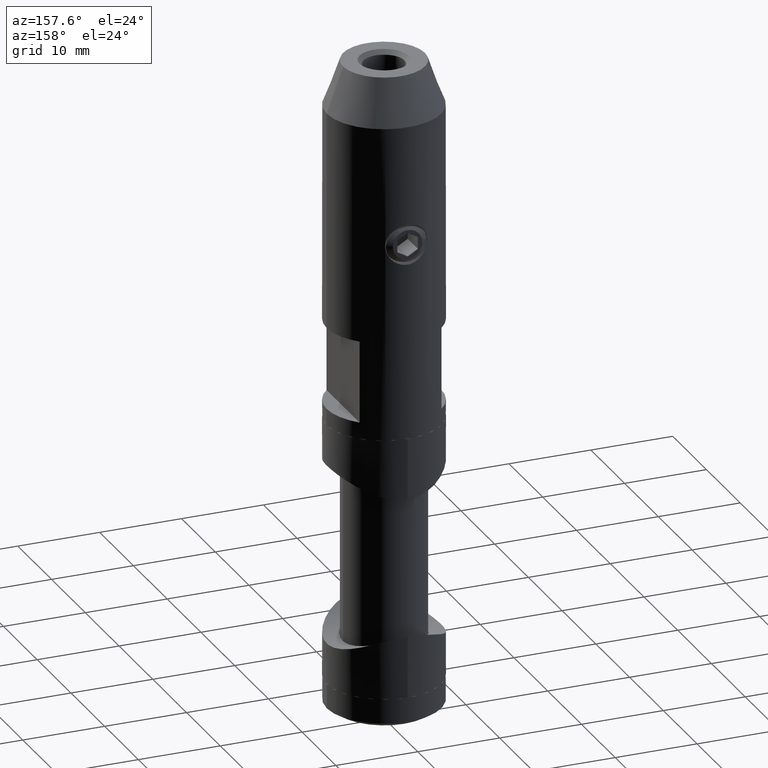
[diagram: clean part render]
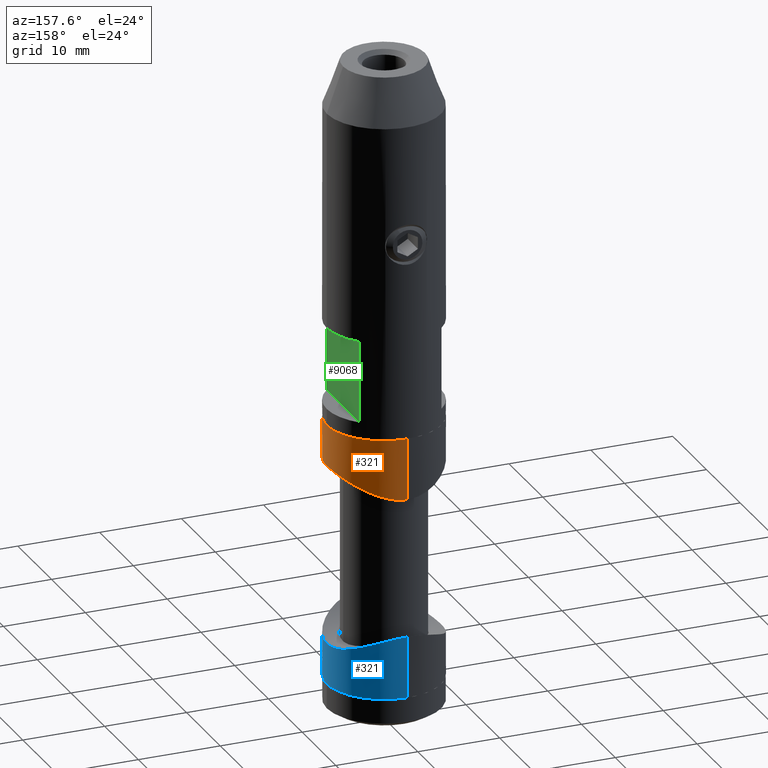
[diagram: same view with three faces highlighted in distinct colors, each labeled with its STEP entity id]
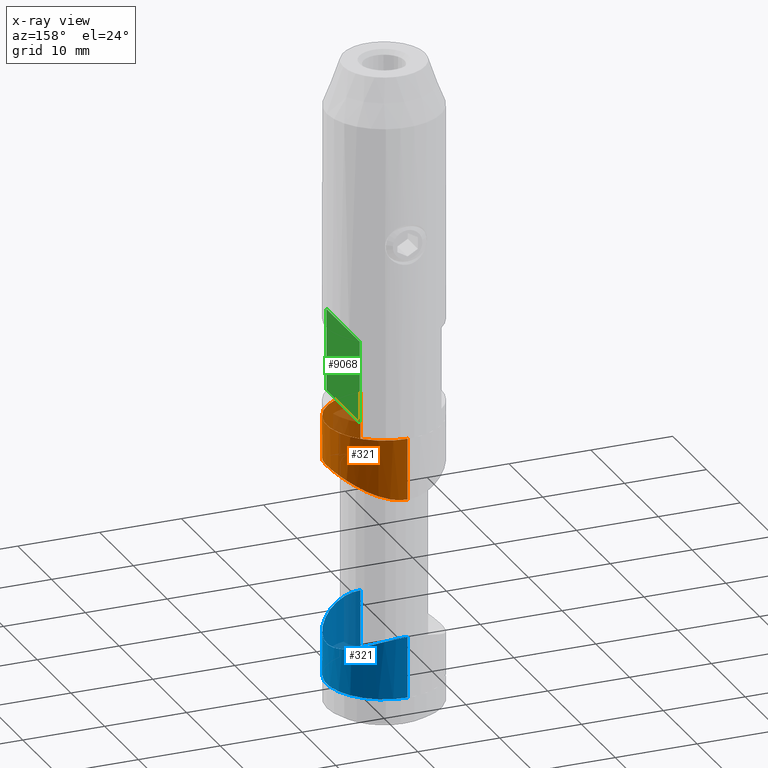
[diagram: x-ray of the same camera — body ghosted, the three highlighted faces saturated]
A machine part, auxiliary view with three faces highlighted in distinct colors.
The next image is the same camera in x-ray (body ghosted, the three faces saturated) — at least one of them is partly hidden behind the body in this view.
Their STEP definitions:

[orange] entity #321 — the highlighted cylindrical surface (partial cylindrical patch) has radius 7 mm, axis along (0, -0, 1).
#68 = CARTESIAN_POINT ( 'NONE',  ( -7.000000000000254907, -8.282557552136786819E-30, 15.00000000000000000 ) ) ;
#122 = LINE ( 'NONE', #13471, #11894 ) ;
#321 = ADVANCED_FACE ( 'NONE', ( #9655 ), #5587, .T. ) ;
#506 = CARTESIAN_POINT ( 'NONE',  ( 7.000000000000004441, -5.723021685032325300E-14, 7.514718625761387827 ) ) ;
#767 = CARTESIAN_POINT ( 'NONE',  ( -2.300155943045375739, -6.627297524066506185, 5.234279387161443253 ) ) ;
#959 = CARTESIAN_POINT ( 'NONE',  ( -0.4616743109381308829, -6.988715196624761816, 5.007192627578020527 ) ) ;
#1020 = CARTESIAN_POINT ( 'NONE',  ( 6.999999999999996447, -0.4740943276049978117, 7.514718625761454440 ) ) ;
#1075 = CARTESIAN_POINT ( 'NONE',  ( -7.000000000000000000, -8.282903418160179087E-30, 2.159148023590378122E-34 ) ) ;
#2294 = CARTESIAN_POINT ( 'NONE',  ( 3.563861619915402290, -6.041396753817215526, 5.585804001147470998 ) ) ;
#2364 = CARTESIAN_POINT ( 'NONE',  ( -1.164191950391297414, -6.906543958800002159, 5.059295683047658088 ) ) ;
#2401 = DIRECTION ( 'NONE',  ( -3.084497176557682421E-35, -3.084497176557682421E-35, -1.000000000000000000 ) ) ;
#2502 = CARTESIAN_POINT ( 'NONE',  ( -0.9295944337245134470, -6.941983683191890186, 5.036843005532409379 ) ) ;
#2564 = CARTESIAN_POINT ( 'NONE',  ( 6.056531478097463506, -3.537940262749728948, 6.812822254243739550 ) ) ;
#2999 = DIRECTION ( 'NONE',  ( -3.084497176557682421E-35, -3.084497176557682421E-35, -1.000000000000000000 ) ) ;
#3431 = VERTEX_POINT ( 'NONE', #506 ) ;
#3862 = CARTESIAN_POINT ( 'NONE',  ( -4.634687890405571942, -5.250686637709595317, 6.022263489474741327 ) ) ;
#3930 = CARTESIAN_POINT ( 'NONE',  ( -3.144431679818662229, -6.258171158556381286, 5.456902873018733224 ) ) ;
#4005 = CARTESIAN_POINT ( 'NONE',  ( -3.738745410604529695, -5.922185817696358434, 5.652949233903943771 ) ) ;
#4127 = CARTESIAN_POINT ( 'NONE',  ( 6.753785770811216338, -1.854607853229240932, 7.317040327690201629 ) ) ;
#4145 = DIRECTION ( 'NONE',  ( 3.084497176557682421E-35, 3.084497176557682421E-35, 1.000000000000000000 ) ) ;
#4487 = EDGE_CURVE ( 'NONE', #19534, #18826, #4799, .T. ) ;
#4535 = LINE ( 'NONE', #68, #19913 ) ;
#4799 = CIRCLE ( 'NONE', #8025, 7.000000000000254907 ) ;
#5586 = CARTESIAN_POINT ( 'NONE',  ( -1.857958556001904737, -6.765409035154463346, 5.148022972862459135 ) ) ;
#5587 = CYLINDRICAL_SURFACE ( 'NONE', #13263, 7.000000000000254907 ) ;
#5978 = CARTESIAN_POINT ( 'NONE',  ( -5.554878004119144563, -4.282654945670762103, 6.501104165803741175 ) ) ;
#6626 = ORIENTED_EDGE ( 'NONE', *, *, #11812, .F. ) ;
#6986 = CARTESIAN_POINT ( 'NONE',  ( 0.9561356181228538587, -6.950147116260164459, 5.031903391544506832 ) ) ;
#7056 = CARTESIAN_POINT ( 'NONE',  ( 5.277947180286361117, -4.619883079932325387, 6.342453332013024081 ) ) ;
#7247 = CARTESIAN_POINT ( 'NONE',  ( -6.270293628163780220, -3.144809313829456610, 6.959473810284622530 ) ) ;
#7383 = CARTESIAN_POINT ( 'NONE',  ( -7.000000000000284217, -0.4763624378593324660, 7.514718625761431348 ) ) ;
#7428 = B_SPLINE_CURVE_WITH_KNOTS ( 'NONE', 3,
 ( #17685, #1020, #11624, #11748, #4127, #17756, #16398, #16136, #2564, #16271, #7056, #13321, #9949, #2294, #19372, #14577, #19158, #6986, #11554, #13132, #959, #2502, #2364, #5586, #767, #8484, #3930, #11483, #4005, #14643, #8550, #3862, #13256, #10085, #5978, #16473, #7247, #12092, #13510, #8936, #7383, #16670 ),
 .UNSPECIFIED., .F., .F.,
 ( 4, 2, 2, 2, 2, 2, 2, 2, 2, 2, 2, 2, 2, 2, 2, 2, 2, 2, 2, 2, 4 ),
 ( 0.02253123587157023974, 0.02393527655227489434, 0.02463729689262722511, 0.02533931723297955241, 0.02674335791368420701, 0.02814739859438886507, 0.02955143927509352314, 0.03095547995579818121, 0.03235952063650283927, 0.03376356131720749387, 0.03446558165755982117, 0.03516760199791215541, 0.03657164267861681001, 0.03727366301896913731, 0.03797568335932146460, 0.03867770369967379190, 0.03937972404002612614, 0.04078376472073078074, 0.04218780540143544922, 0.04359184608214010381, 0.04499588676284476535 ),
 .UNSPECIFIED. ) ;
#8025 = AXIS2_PLACEMENT_3D ( 'NONE', #11770, #4145, #10434 ) ;
#8484 = CARTESIAN_POINT ( 'NONE',  ( -2.936049864269827836, -6.358660130344079953, 5.396817665741710179 ) ) ;
#8550 = CARTESIAN_POINT ( 'NONE',  ( -4.289978481396708787, -5.535894384654330480, 5.869272368477476576 ) ) ;
#8609 = EDGE_CURVE ( 'NONE', #17707, #19534, #4535, .T. ) ;
#8836 = ORIENTED_EDGE ( 'NONE', *, *, #11252, .T. ) ;
#8936 = CARTESIAN_POINT ( 'NONE',  ( -6.951047740780801121, -0.9505557249542421205, 7.473712008211712998 ) ) ;
#9655 = FACE_OUTER_BOUND ( 'NONE', #11218, .T. ) ;
#9949 = CARTESIAN_POINT ( 'NONE',  ( 4.302957743383328371, -5.539326587374739042, 5.868803495781969026 ) ) ;
#10085 = CARTESIAN_POINT ( 'NONE',  ( -5.273991696881241253, -4.624345898174418323, 6.340300785909568582 ) ) ;
#10434 = DIRECTION ( 'NONE',  ( 1.000000000000000000, 1.183291357831474618E-30, 2.445028249710268746E-35 ) ) ;
#10675 = DIRECTION ( 'NONE',  ( -3.084497176557682421E-35, -3.084497176557682421E-35, -1.000000000000000000 ) ) ;
#11218 = EDGE_LOOP ( 'NONE', ( #6626, #8836, #14083, #13206 ) ) ;
#11252 = EDGE_CURVE ( 'NONE', #3431, #17707, #7428, .T. ) ;
#11483 = CARTESIAN_POINT ( 'NONE',  ( -3.545662890074149143, -6.039903269820232623, 5.584980927143774032 ) ) ;
#11554 = CARTESIAN_POINT ( 'NONE',  ( 0.4779855654310720681, -6.999466188930153265, 5.000339697825916474 ) ) ;
#11624 = CARTESIAN_POINT ( 'NONE',  ( 6.952353740326868703, -0.9398979421706252779, 7.474799345840276388 ) ) ;
#11748 = CARTESIAN_POINT ( 'NONE',  ( 6.812274545733001396, -1.627136497544569682, 7.363074465144524794 ) ) ;
#11770 = CARTESIAN_POINT ( 'NONE',  ( 0.000000000000000000, 0.000000000000000000, 0.000000000000000000 ) ) ;
#11812 = EDGE_CURVE ( 'NONE', #3431, #18826, #122, .T. ) ;
#11894 = VECTOR ( 'NONE', #2999, 1000.000000000000000 ) ;
#12092 = CARTESIAN_POINT ( 'NONE',  ( -6.624192190383780598, -2.307918029003276583, 7.215481015150577271 ) ) ;
#12592 = CARTESIAN_POINT ( 'NONE',  ( 7.000000000000000000, 8.572527594031556020E-16, -2.159148023590378122E-34 ) ) ;
#13132 = CARTESIAN_POINT ( 'NONE',  ( -0.2271689663048469532, -7.000260248264503993, 4.999834387531060464 ) ) ;
#13206 = ORIENTED_EDGE ( 'NONE', *, *, #4487, .T. ) ;
#13256 = CARTESIAN_POINT ( 'NONE',  ( -4.801024735240244645, -5.099024646223536017, 6.101446781323081936 ) ) ;
#13263 = AXIS2_PLACEMENT_3D ( 'NONE', #14871, #2401, #16639 ) ;
#13321 = CARTESIAN_POINT ( 'NONE',  ( 4.647052587015751079, -5.254041145979729599, 6.023535880095139738 ) ) ;
#13471 = CARTESIAN_POINT ( 'NONE',  ( 7.000000000000254907, 8.572527594031867620E-16, 15.00000000000000000 ) ) ;
#13510 = CARTESIAN_POINT ( 'NONE',  ( -6.761740977554861587, -1.870689667826440639, 7.322816668642889049 ) ) ;
#14083 = ORIENTED_EDGE ( 'NONE', *, *, #8609, .T. ) ;
#14577 = CARTESIAN_POINT ( 'NONE',  ( 2.313820538208837707, -6.622735270713296707, 5.237110732547023417 ) ) ;
#14643 = CARTESIAN_POINT ( 'NONE',  ( -4.110904691520238963, -5.670182071316340000, 5.795092385586124273 ) ) ;
#14871 = CARTESIAN_POINT ( 'NONE',  ( 0.000000000000000000, 4.819526838371378783E-34, 15.00000000000000000 ) ) ;
#16136 = CARTESIAN_POINT ( 'NONE',  ( 6.273866739672759429, -3.137677219901788828, 6.961965779511344543 ) ) ;
#16271 = CARTESIAN_POINT ( 'NONE',  ( 5.558983717407167902, -4.277416846365695413, 6.503500197077546119 ) ) ;
#16398 = CARTESIAN_POINT ( 'NONE',  ( 6.538584528614772573, -2.509684823444015223, 7.153600790624825123 ) ) ;
#16473 = CARTESIAN_POINT ( 'NONE',  ( -6.052226204783508479, -3.545188428060873420, 6.809991856603720528 ) ) ;
#16639 = DIRECTION ( 'NONE',  ( -1.000000000000000000, -1.183291357831474618E-30, 0.000000000000000000 ) ) ;
#16670 = CARTESIAN_POINT ( 'NONE',  ( -7.000000000000284217, -9.244463733058732095E-30, 7.514718625761432236 ) ) ;
#17685 = CARTESIAN_POINT ( 'NONE',  ( 7.000000000000004441, -5.723021685032325300E-14, 7.514718625761387827 ) ) ;
#17707 = VERTEX_POINT ( 'NONE', #18214 ) ;
#17756 = CARTESIAN_POINT ( 'NONE',  ( 6.617060154661993820, -2.295148674237948327, 7.212399313888086638 ) ) ;
#18214 = CARTESIAN_POINT ( 'NONE',  ( -7.000000000000284217, -9.244463733058732095E-30, 7.514718625761432236 ) ) ;
#18826 = VERTEX_POINT ( 'NONE', #12592 ) ;
#19158 = CARTESIAN_POINT ( 'NONE',  ( 1.872241291340982938, -6.761172443067881233, 5.150665869296223498 ) ) ;
#19372 = CARTESIAN_POINT ( 'NONE',  ( 3.165976961786824972, -6.260269788629083898, 5.456274816559064433 ) ) ;
#19534 = VERTEX_POINT ( 'NONE', #1075 ) ;
#19913 = VECTOR ( 'NONE', #10675, 1000.000000000000000 ) ;

[blue] entity #321 — the highlighted cylindrical surface (partial cylindrical patch) has radius 7 mm, axis along (0, -0, -1).
#68 = CARTESIAN_POINT ( 'NONE',  ( -7.000000000000254907, -8.282557552136786819E-30, 15.00000000000000000 ) ) ;
#122 = LINE ( 'NONE', #13471, #11894 ) ;
#321 = ADVANCED_FACE ( 'NONE', ( #9655 ), #5587, .T. ) ;
#506 = CARTESIAN_POINT ( 'NONE',  ( 7.000000000000004441, -5.723021685032325300E-14, 7.514718625761387827 ) ) ;
#767 = CARTESIAN_POINT ( 'NONE',  ( -2.300155943045375739, -6.627297524066506185, 5.234279387161443253 ) ) ;
#959 = CARTESIAN_POINT ( 'NONE',  ( -0.4616743109381308829, -6.988715196624761816, 5.007192627578020527 ) ) ;
#1020 = CARTESIAN_POINT ( 'NONE',  ( 6.999999999999996447, -0.4740943276049978117, 7.514718625761454440 ) ) ;
#1075 = CARTESIAN_POINT ( 'NONE',  ( -7.000000000000000000, -8.282903418160179087E-30, 2.159148023590378122E-34 ) ) ;
#2294 = CARTESIAN_POINT ( 'NONE',  ( 3.563861619915402290, -6.041396753817215526, 5.585804001147470998 ) ) ;
#2364 = CARTESIAN_POINT ( 'NONE',  ( -1.164191950391297414, -6.906543958800002159, 5.059295683047658088 ) ) ;
#2401 = DIRECTION ( 'NONE',  ( -3.084497176557682421E-35, -3.084497176557682421E-35, -1.000000000000000000 ) ) ;
#2502 = CARTESIAN_POINT ( 'NONE',  ( -0.9295944337245134470, -6.941983683191890186, 5.036843005532409379 ) ) ;
#2564 = CARTESIAN_POINT ( 'NONE',  ( 6.056531478097463506, -3.537940262749728948, 6.812822254243739550 ) ) ;
#2999 = DIRECTION ( 'NONE',  ( -3.084497176557682421E-35, -3.084497176557682421E-35, -1.000000000000000000 ) ) ;
#3431 = VERTEX_POINT ( 'NONE', #506 ) ;
#3862 = CARTESIAN_POINT ( 'NONE',  ( -4.634687890405571942, -5.250686637709595317, 6.022263489474741327 ) ) ;
#3930 = CARTESIAN_POINT ( 'NONE',  ( -3.144431679818662229, -6.258171158556381286, 5.456902873018733224 ) ) ;
#4005 = CARTESIAN_POINT ( 'NONE',  ( -3.738745410604529695, -5.922185817696358434, 5.652949233903943771 ) ) ;
#4127 = CARTESIAN_POINT ( 'NONE',  ( 6.753785770811216338, -1.854607853229240932, 7.317040327690201629 ) ) ;
#4145 = DIRECTION ( 'NONE',  ( 3.084497176557682421E-35, 3.084497176557682421E-35, 1.000000000000000000 ) ) ;
#4487 = EDGE_CURVE ( 'NONE', #19534, #18826, #4799, .T. ) ;
#4535 = LINE ( 'NONE', #68, #19913 ) ;
#4799 = CIRCLE ( 'NONE', #8025, 7.000000000000254907 ) ;
#5586 = CARTESIAN_POINT ( 'NONE',  ( -1.857958556001904737, -6.765409035154463346, 5.148022972862459135 ) ) ;
#5587 = CYLINDRICAL_SURFACE ( 'NONE', #13263, 7.000000000000254907 ) ;
#5978 = CARTESIAN_POINT ( 'NONE',  ( -5.554878004119144563, -4.282654945670762103, 6.501104165803741175 ) ) ;
#6626 = ORIENTED_EDGE ( 'NONE', *, *, #11812, .F. ) ;
#6986 = CARTESIAN_POINT ( 'NONE',  ( 0.9561356181228538587, -6.950147116260164459, 5.031903391544506832 ) ) ;
#7056 = CARTESIAN_POINT ( 'NONE',  ( 5.277947180286361117, -4.619883079932325387, 6.342453332013024081 ) ) ;
#7247 = CARTESIAN_POINT ( 'NONE',  ( -6.270293628163780220, -3.144809313829456610, 6.959473810284622530 ) ) ;
#7383 = CARTESIAN_POINT ( 'NONE',  ( -7.000000000000284217, -0.4763624378593324660, 7.514718625761431348 ) ) ;
#7428 = B_SPLINE_CURVE_WITH_KNOTS ( 'NONE', 3,
 ( #17685, #1020, #11624, #11748, #4127, #17756, #16398, #16136, #2564, #16271, #7056, #13321, #9949, #2294, #19372, #14577, #19158, #6986, #11554, #13132, #959, #2502, #2364, #5586, #767, #8484, #3930, #11483, #4005, #14643, #8550, #3862, #13256, #10085, #5978, #16473, #7247, #12092, #13510, #8936, #7383, #16670 ),
 .UNSPECIFIED., .F., .F.,
 ( 4, 2, 2, 2, 2, 2, 2, 2, 2, 2, 2, 2, 2, 2, 2, 2, 2, 2, 2, 2, 4 ),
 ( 0.02253123587157023974, 0.02393527655227489434, 0.02463729689262722511, 0.02533931723297955241, 0.02674335791368420701, 0.02814739859438886507, 0.02955143927509352314, 0.03095547995579818121, 0.03235952063650283927, 0.03376356131720749387, 0.03446558165755982117, 0.03516760199791215541, 0.03657164267861681001, 0.03727366301896913731, 0.03797568335932146460, 0.03867770369967379190, 0.03937972404002612614, 0.04078376472073078074, 0.04218780540143544922, 0.04359184608214010381, 0.04499588676284476535 ),
 .UNSPECIFIED. ) ;
#8025 = AXIS2_PLACEMENT_3D ( 'NONE', #11770, #4145, #10434 ) ;
#8484 = CARTESIAN_POINT ( 'NONE',  ( -2.936049864269827836, -6.358660130344079953, 5.396817665741710179 ) ) ;
#8550 = CARTESIAN_POINT ( 'NONE',  ( -4.289978481396708787, -5.535894384654330480, 5.869272368477476576 ) ) ;
#8609 = EDGE_CURVE ( 'NONE', #17707, #19534, #4535, .T. ) ;
#8836 = ORIENTED_EDGE ( 'NONE', *, *, #11252, .T. ) ;
#8936 = CARTESIAN_POINT ( 'NONE',  ( -6.951047740780801121, -0.9505557249542421205, 7.473712008211712998 ) ) ;
#9655 = FACE_OUTER_BOUND ( 'NONE', #11218, .T. ) ;
#9949 = CARTESIAN_POINT ( 'NONE',  ( 4.302957743383328371, -5.539326587374739042, 5.868803495781969026 ) ) ;
#10085 = CARTESIAN_POINT ( 'NONE',  ( -5.273991696881241253, -4.624345898174418323, 6.340300785909568582 ) ) ;
#10434 = DIRECTION ( 'NONE',  ( 1.000000000000000000, 1.183291357831474618E-30, 2.445028249710268746E-35 ) ) ;
#10675 = DIRECTION ( 'NONE',  ( -3.084497176557682421E-35, -3.084497176557682421E-35, -1.000000000000000000 ) ) ;
#11218 = EDGE_LOOP ( 'NONE', ( #6626, #8836, #14083, #13206 ) ) ;
#11252 = EDGE_CURVE ( 'NONE', #3431, #17707, #7428, .T. ) ;
#11483 = CARTESIAN_POINT ( 'NONE',  ( -3.545662890074149143, -6.039903269820232623, 5.584980927143774032 ) ) ;
#11554 = CARTESIAN_POINT ( 'NONE',  ( 0.4779855654310720681, -6.999466188930153265, 5.000339697825916474 ) ) ;
#11624 = CARTESIAN_POINT ( 'NONE',  ( 6.952353740326868703, -0.9398979421706252779, 7.474799345840276388 ) ) ;
#11748 = CARTESIAN_POINT ( 'NONE',  ( 6.812274545733001396, -1.627136497544569682, 7.363074465144524794 ) ) ;
#11770 = CARTESIAN_POINT ( 'NONE',  ( 0.000000000000000000, 0.000000000000000000, 0.000000000000000000 ) ) ;
#11812 = EDGE_CURVE ( 'NONE', #3431, #18826, #122, .T. ) ;
#11894 = VECTOR ( 'NONE', #2999, 1000.000000000000000 ) ;
#12092 = CARTESIAN_POINT ( 'NONE',  ( -6.624192190383780598, -2.307918029003276583, 7.215481015150577271 ) ) ;
#12592 = CARTESIAN_POINT ( 'NONE',  ( 7.000000000000000000, 8.572527594031556020E-16, -2.159148023590378122E-34 ) ) ;
#13132 = CARTESIAN_POINT ( 'NONE',  ( -0.2271689663048469532, -7.000260248264503993, 4.999834387531060464 ) ) ;
#13206 = ORIENTED_EDGE ( 'NONE', *, *, #4487, .T. ) ;
#13256 = CARTESIAN_POINT ( 'NONE',  ( -4.801024735240244645, -5.099024646223536017, 6.101446781323081936 ) ) ;
#13263 = AXIS2_PLACEMENT_3D ( 'NONE', #14871, #2401, #16639 ) ;
#13321 = CARTESIAN_POINT ( 'NONE',  ( 4.647052587015751079, -5.254041145979729599, 6.023535880095139738 ) ) ;
#13471 = CARTESIAN_POINT ( 'NONE',  ( 7.000000000000254907, 8.572527594031867620E-16, 15.00000000000000000 ) ) ;
#13510 = CARTESIAN_POINT ( 'NONE',  ( -6.761740977554861587, -1.870689667826440639, 7.322816668642889049 ) ) ;
#14083 = ORIENTED_EDGE ( 'NONE', *, *, #8609, .T. ) ;
#14577 = CARTESIAN_POINT ( 'NONE',  ( 2.313820538208837707, -6.622735270713296707, 5.237110732547023417 ) ) ;
#14643 = CARTESIAN_POINT ( 'NONE',  ( -4.110904691520238963, -5.670182071316340000, 5.795092385586124273 ) ) ;
#14871 = CARTESIAN_POINT ( 'NONE',  ( 0.000000000000000000, 4.819526838371378783E-34, 15.00000000000000000 ) ) ;
#16136 = CARTESIAN_POINT ( 'NONE',  ( 6.273866739672759429, -3.137677219901788828, 6.961965779511344543 ) ) ;
#16271 = CARTESIAN_POINT ( 'NONE',  ( 5.558983717407167902, -4.277416846365695413, 6.503500197077546119 ) ) ;
#16398 = CARTESIAN_POINT ( 'NONE',  ( 6.538584528614772573, -2.509684823444015223, 7.153600790624825123 ) ) ;
#16473 = CARTESIAN_POINT ( 'NONE',  ( -6.052226204783508479, -3.545188428060873420, 6.809991856603720528 ) ) ;
#16639 = DIRECTION ( 'NONE',  ( -1.000000000000000000, -1.183291357831474618E-30, 0.000000000000000000 ) ) ;
#16670 = CARTESIAN_POINT ( 'NONE',  ( -7.000000000000284217, -9.244463733058732095E-30, 7.514718625761432236 ) ) ;
#17685 = CARTESIAN_POINT ( 'NONE',  ( 7.000000000000004441, -5.723021685032325300E-14, 7.514718625761387827 ) ) ;
#17707 = VERTEX_POINT ( 'NONE', #18214 ) ;
#17756 = CARTESIAN_POINT ( 'NONE',  ( 6.617060154661993820, -2.295148674237948327, 7.212399313888086638 ) ) ;
#18214 = CARTESIAN_POINT ( 'NONE',  ( -7.000000000000284217, -9.244463733058732095E-30, 7.514718625761432236 ) ) ;
#18826 = VERTEX_POINT ( 'NONE', #12592 ) ;
#19158 = CARTESIAN_POINT ( 'NONE',  ( 1.872241291340982938, -6.761172443067881233, 5.150665869296223498 ) ) ;
#19372 = CARTESIAN_POINT ( 'NONE',  ( 3.165976961786824972, -6.260269788629083898, 5.456274816559064433 ) ) ;
#19534 = VERTEX_POINT ( 'NONE', #1075 ) ;
#19913 = VECTOR ( 'NONE', #10675, 1000.000000000000000 ) ;

[green] entity #9068 — the highlighted planar face has unit normal (-1, 0, -0).
#502 = DIRECTION ( 'NONE',  ( -0.000000000000000000, -1.000000000000000000, 0.000000000000000000 ) ) ;
#2272 = PLANE ( 'NONE',  #15731 ) ;
#2823 = VECTOR ( 'NONE', #3749, 1000.000000000000000 ) ;
#2828 = ORIENTED_EDGE ( 'NONE', *, *, #7918, .T. ) ;
#3434 = ORIENTED_EDGE ( 'NONE', *, *, #11900, .F. ) ;
#3749 = DIRECTION ( 'NONE',  ( 0.000000000000000000, 0.000000000000000000, 1.000000000000000000 ) ) ;
#3770 = DIRECTION ( 'NONE',  ( -1.000000000000000000, 0.000000000000000000, -1.734723475976807834E-16 ) ) ;
#3834 = LINE ( 'NONE', #18758, #15080 ) ;
#3842 = DIRECTION ( 'NONE',  ( -1.734723475976807834E-16, 0.000000000000000000, 1.000000000000000000 ) ) ;
#4701 = VERTEX_POINT ( 'NONE', #6510 ) ;
#4919 = ORIENTED_EDGE ( 'NONE', *, *, #12325, .T. ) ;
#5420 = CARTESIAN_POINT ( 'NONE',  ( 5.000000000000000000, 4.898979485566353986, -22.00000000000000000 ) ) ;
#5718 = DIRECTION ( 'NONE',  ( -0.000000000000000000, -0.000000000000000000, -1.000000000000000000 ) ) ;
#6148 = LINE ( 'NONE', #13324, #18880 ) ;
#6510 = CARTESIAN_POINT ( 'NONE',  ( 4.999999999999998224, -4.898979485566355763, -9.999999999999998224 ) ) ;
#6911 = EDGE_LOOP ( 'NONE', ( #4919, #3434, #19291, #2828 ) ) ;
#7918 = EDGE_CURVE ( 'NONE', #9706, #4701, #3834, .T. ) ;
#9068 = ADVANCED_FACE ( 'NONE', ( #14092 ), #2272, .F. ) ;
#9706 = VERTEX_POINT ( 'NONE', #17160 ) ;
#10504 = EDGE_CURVE ( 'NONE', #11736, #9706, #18425, .T. ) ;
#11139 = VERTEX_POINT ( 'NONE', #14378 ) ;
#11736 = VERTEX_POINT ( 'NONE', #16179 ) ;
#11900 = EDGE_CURVE ( 'NONE', #11736, #11139, #15267, .T. ) ;
#12325 = EDGE_CURVE ( 'NONE', #4701, #11139, #6148, .T. ) ;
#13040 = CARTESIAN_POINT ( 'NONE',  ( 5.000000000000001776, 6.999999999999999112, -19.99999999999999645 ) ) ;
#13324 = CARTESIAN_POINT ( 'NONE',  ( 5.000000000000000000, -4.898979485566353986, -22.00000000000000000 ) ) ;
#14092 = FACE_OUTER_BOUND ( 'NONE', #6911, .T. ) ;
#14378 = CARTESIAN_POINT ( 'NONE',  ( 5.000000000000001776, -4.898979485566350434, -19.99999999999999645 ) ) ;
#15080 = VECTOR ( 'NONE', #502, 1000.000000000000000 ) ;
#15267 = LINE ( 'NONE', #17142, #18162 ) ;
#15731 = AXIS2_PLACEMENT_3D ( 'NONE', #13040, #3770, #3842 ) ;
#16179 = CARTESIAN_POINT ( 'NONE',  ( 5.000000000000001776, 4.898979485566354874, -19.99999999999999645 ) ) ;
#16956 = DIRECTION ( 'NONE',  ( -0.000000000000000000, -1.000000000000000000, 0.000000000000000000 ) ) ;
#17142 = CARTESIAN_POINT ( 'NONE',  ( 5.000000000000001776, 6.999999999999999112, -19.99999999999999645 ) ) ;
#17160 = CARTESIAN_POINT ( 'NONE',  ( 4.999999999999998224, 4.898979485566355763, -9.999999999999998224 ) ) ;
#18162 = VECTOR ( 'NONE', #16956, 1000.000000000000000 ) ;
#18425 = LINE ( 'NONE', #5420, #2823 ) ;
#18758 = CARTESIAN_POINT ( 'NONE',  ( 5.000000000000000000, 6.999999999999999112, -9.999999999999998224 ) ) ;
#18880 = VECTOR ( 'NONE', #5718, 1000.000000000000000 ) ;
#19291 = ORIENTED_EDGE ( 'NONE', *, *, #10504, .T. ) ;